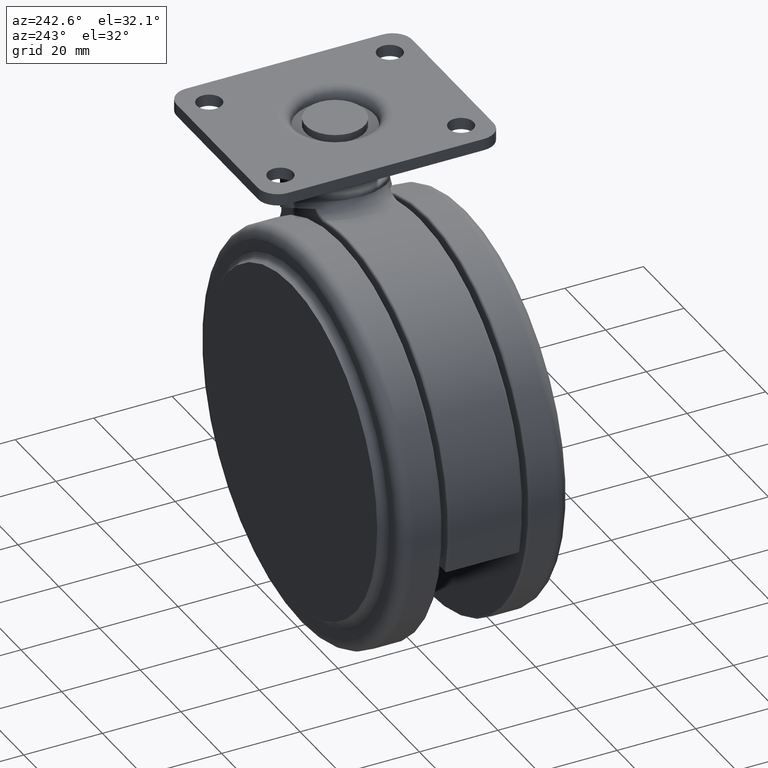
[diagram: clean part render]
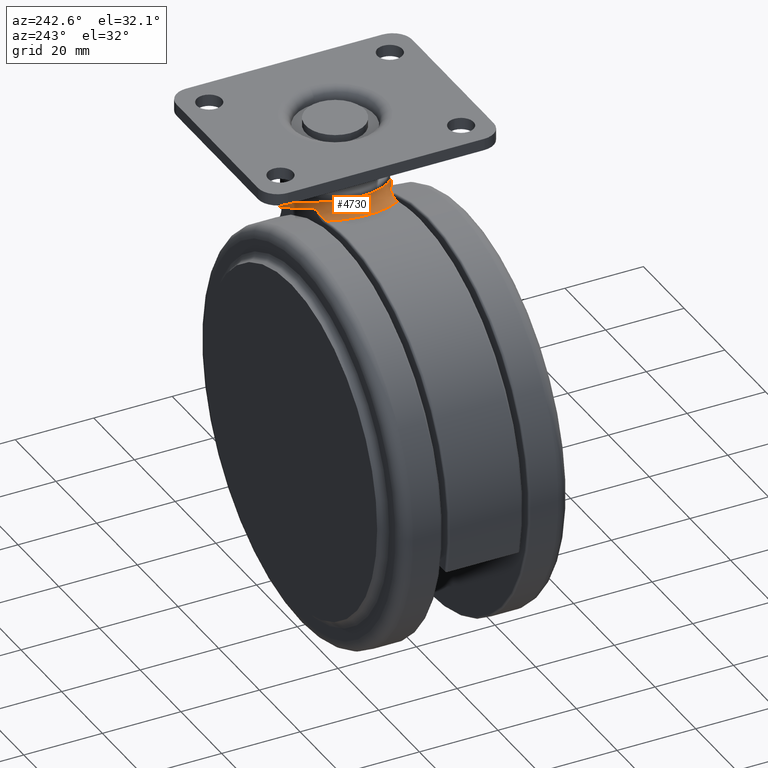
[diagram: same view with one face highlighted and labeled with its STEP entity id]
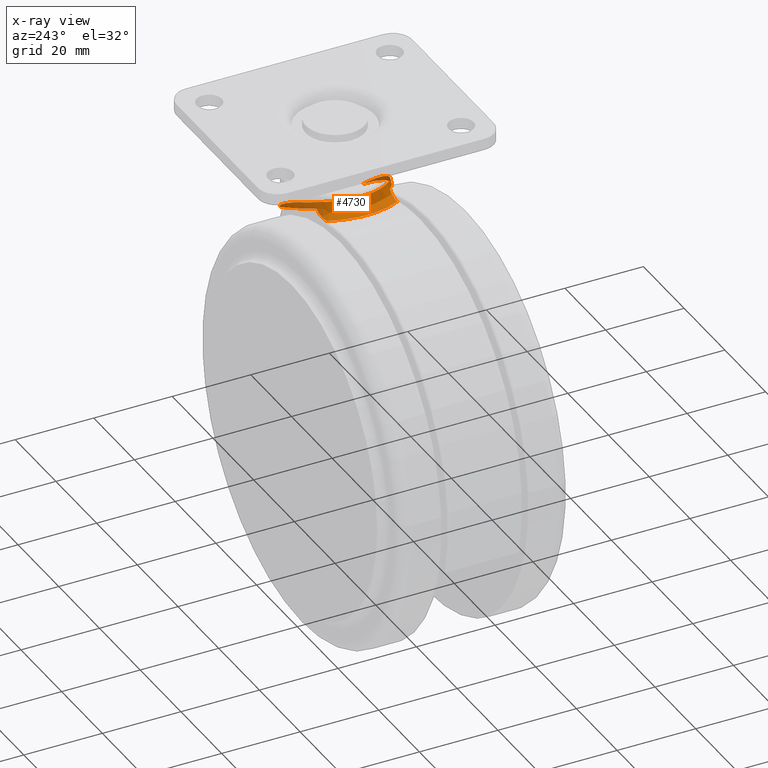
[diagram: x-ray of the same camera — body ghosted, the highlighted face saturated]
A machine part, auxiliary view. The second image highlights one B-rep face of the part: STEP entity #4730.
The next image is the same camera in x-ray: the body ghosted, the highlighted face saturated — about 3% of this face is hidden behind the body in this view.
In plain terms, the highlighted face is a freeform B-spline surface patch.
Its self-contained STEP definition (entity closure, byte-faithful):
#17 = CARTESIAN_POINT ( 'NONE',  ( -11.05255008085239700, -5.968249856000659800, -1.502056193002589100 ) ) ;
#32 = CARTESIAN_POINT ( 'NONE',  ( -1.192391523107178900, -12.45462709146477900, -5.517594693845965500 ) ) ;
#39 = CARTESIAN_POINT ( 'NONE',  ( 6.331688248807093800, -10.79892767742702200, -11.25689161246728900 ) ) ;
#63 = CARTESIAN_POINT ( 'NONE',  ( -2.625611816641463000, -12.48824673552468300, -6.094465767455385900 ) ) ;
#101 = CARTESIAN_POINT ( 'NONE',  ( -10.59497871372942200, -9.218252311348534200, -4.622310199946436900 ) ) ;
#113 = CARTESIAN_POINT ( 'NONE',  ( -2.269545502966793000, 12.54539565837250600, -6.256554943348969100 ) ) ;
#125 = CARTESIAN_POINT ( 'NONE',  ( -15.16687945985294100, 5.155127735243463700, -4.285994410603169800 ) ) ;
#139 = CARTESIAN_POINT ( 'NONE',  ( -10.96272289689342100, 6.023635832301283500, -5.132312510495443900 ) ) ;
#141 = CARTESIAN_POINT ( 'NONE',  ( -15.05754743931497500, -5.480090249505247300, -4.305619938092127600 ) ) ;
#156 = CARTESIAN_POINT ( 'NONE',  ( 6.986995497130923400, -12.72770506251308100, -14.25963672363891300 ) ) ;
#157 = B_SPLINE_CURVE_WITH_KNOTS ( 'NONE', 3,
 ( #4038, #1557, #5273, #2820, #328, #3222, #749, #3638, #1159, #4053, #1574, #4458 ),
 .UNSPECIFIED., .F., .F.,
 ( 4, 2, 2, 2, 2, 4 ),
 ( 0.0000000000000000000, 0.0005858198378553493500, 0.001171639675710698700, 0.002343279351421397000, 0.003514919027132095200, 0.004686558702842793000 ),
 .UNSPECIFIED. ) ;
#160 = CARTESIAN_POINT ( 'NONE',  ( -7.164090072918048300, 10.31335533572328200, -2.687840070387313800 ) ) ;
#163 = CARTESIAN_POINT ( 'NONE',  ( -15.50401833692048100, 3.947490771882072600, -4.227025261565246200 ) ) ;
#179 = CARTESIAN_POINT ( 'NONE',  ( 4.239989036254580200, -11.82879909374598000, -12.22885973019591600 ) ) ;
#186 = CARTESIAN_POINT ( 'NONE',  ( -5.765676329641252100, 14.78340349814436500, -6.942224279928481700 ) ) ;
#193 = CARTESIAN_POINT ( 'NONE',  ( -1.206513916182547100, 12.45338760345794100, -5.509326475754249900 ) ) ;
#198 = CARTESIAN_POINT ( 'NONE',  ( 2.472975389653902000, -12.29896663531446100, -7.907774636699534700 ) ) ;
#202 = CARTESIAN_POINT ( 'NONE',  ( -2.099491504748952900, 12.40681957646687100, -8.547373117171520800 ) ) ;
#204 = CARTESIAN_POINT ( 'NONE',  ( -9.655943257620514000, 7.960962658190189800, -1.879960548456947000 ) ) ;
#215 = CARTESIAN_POINT ( 'NONE',  ( -2.220604327319924700, -15.48760225562112100, -8.487112476514049300 ) ) ;
#219 = CARTESIAN_POINT ( 'NONE',  ( 2.439090476403593700, 12.27097144438853100, -7.901442719928805800 ) ) ;
#223 = CARTESIAN_POINT ( 'NONE',  ( -12.50000000000004300, 0.6160883289880726400, -1.186043927074281500 ) ) ;
#232 = CARTESIAN_POINT ( 'NONE',  ( -5.116444834672073200, -11.47567324354674900, -7.188933848726006400 ) ) ;
#237 = CARTESIAN_POINT ( 'NONE',  ( 6.990347924262724000, 12.72523446509052100, -14.26228427223183500 ) ) ;
#246 = VERTEX_POINT ( 'NONE', #1388 ) ;
#255 = CARTESIAN_POINT ( 'NONE',  ( -6.859283430558512000, -10.45398676545647600, -2.814450889597747800 ) ) ;
#269 = CARTESIAN_POINT ( 'NONE',  ( -11.80419177587664400, -10.87188164452613200, -5.007829787323195200 ) ) ;
#291 = CARTESIAN_POINT ( 'NONE',  ( -10.51218591138931800, -6.783616985071774700, -5.265167974116970100 ) ) ;
#308 = CARTESIAN_POINT ( 'NONE',  ( -12.13011097394903000, -3.033776999581143200, -1.262566637207804600 ) ) ;
#327 = CARTESIAN_POINT ( 'NONE',  ( -15.96745335427724300, -0.7691047710563417800, -4.149428534670275500 ) ) ;
#328 = CARTESIAN_POINT ( 'NONE',  ( -9.692197245983022600, 9.292290596952465600, -4.284054096072639000 ) ) ;
#382 = ORIENTED_EDGE ( 'NONE', *, *, #1433, .F. ) ;
#417 = CARTESIAN_POINT ( 'NONE',  ( 3.853000779401238400, 11.90137597714839900, -8.988108825932918900 ) ) ;
#455 = CARTESIAN_POINT ( 'NONE',  ( -8.851765532266705700, -8.906901156937189900, -2.111254051636242100 ) ) ;
#457 = ORIENTED_EDGE ( 'NONE', *, *, #4150, .F. ) ;
#477 = CARTESIAN_POINT ( 'NONE',  ( 0.3843239890458946500, -12.50507709659121000, -6.484820060617917800 ) ) ;
#484 = CARTESIAN_POINT ( 'NONE',  ( 4.831978964962078600, -11.55518678160977700, -10.22353763779952700 ) ) ;
#502 = CARTESIAN_POINT ( 'NONE',  ( -4.385696712989256300, -12.06226193285098000, -5.335373687435005500 ) ) ;
#528 = ORIENTED_EDGE ( 'NONE', *, *, #2452, .F. ) ;
#532 = CARTESIAN_POINT ( 'NONE',  ( -12.50000000000008500, 9.038243073550461900E-013, -1.186043927074286000 ) ) ;
#544 = CARTESIAN_POINT ( 'NONE',  ( -9.692197245982358200, -9.292290596952518900, -4.284054096072297000 ) ) ;
#562 = CARTESIAN_POINT ( 'NONE',  ( -11.80394534461613500, 4.157361076774955100, -1.333154075364797200 ) ) ;
#581 = CARTESIAN_POINT ( 'NONE',  ( -13.77915888535375200, 8.188378402521353300, -4.555400836187215100 ) ) ;
#586 = CARTESIAN_POINT ( 'NONE',  ( -15.50394217610509500, -3.947875178841895300, -4.227038109285412100 ) ) ;
#597 = CARTESIAN_POINT ( 'NONE',  ( 7.134044537869966600, -10.26427827622022600, -11.90521492705724800 ) ) ;
#599 = CARTESIAN_POINT ( 'NONE',  ( -7.012854276750481100, 10.44644054004536700, -6.435100511460187400 ) ) ;
#601 = CARTESIAN_POINT ( 'NONE',  ( -15.06078846981251300, 5.470396283528689500, -4.305037803309154800 ) ) ;
#611 = CARTESIAN_POINT ( 'NONE',  ( 4.383170244602888000, -14.25866048374770400, -12.33561514658294600 ) ) ;
#615 = CARTESIAN_POINT ( 'NONE',  ( -3.767432991484799900, 11.92209959537854000, -4.148757736686667000 ) ) ;
#616 = CARTESIAN_POINT ( 'NONE',  ( -1.197363007086488700, 12.65464507787690200, -6.764621571486676600 ) ) ;
#617 = CARTESIAN_POINT ( 'NONE',  ( -2.813531822716705700, 12.19190915977577600, -4.624626457463916700 ) ) ;
#623 = EDGE_CURVE ( 'NONE', #4242, #4655, #851, .T. ) ;
#626 = VERTEX_POINT ( 'NONE', #3543 ) ;
#629 = CARTESIAN_POINT ( 'NONE',  ( -0.2162605381131576200, -12.57620162639197400, -9.517280469023250000 ) ) ;
#634 = CARTESIAN_POINT ( 'NONE',  ( -0.9699230141563918200, 15.50918313210956100, -9.113951337574588900 ) ) ;
#639 = CARTESIAN_POINT ( 'NONE',  ( -10.54379608492189900, 6.721030820350304000, -1.637911079239329000 ) ) ;
#651 = CARTESIAN_POINT ( 'NONE',  ( -0.7369682152764166500, -12.49000181912567000, -5.786339225068708500 ) ) ;
#659 = CARTESIAN_POINT ( 'NONE',  ( 2.163007306920714500, 12.39595951423353500, -10.88253873645500400 ) ) ;
#674 = CARTESIAN_POINT ( 'NONE',  ( -6.687893065378641000, -14.45137333491635300, -6.588236822604992300 ) ) ;
#677 =( BOUNDED_SURFACE ( )  B_SPLINE_SURFACE ( 3, 2, ( 
 ( #156, #5112, #597 ),
 ( #3476, #996, #3893 ),
 ( #1404, #4284, #1833 ),
 ( #4705, #2246, #5133 ),
 ( #2669, #179, #3082 ),
 ( #611, #3497, #1015 ),
 ( #3915, #1418, #4303 ),
 ( #1852, #4722, #2267 ),
 ( #5152, #2687, #198 ),
 ( #3103, #629, #3517 ),
 ( #1040, #3930, #1439 ),
 ( #4322, #1874, #4740 ),
 ( #2280, #5173, #2708 ),
 ( #215, #3120, #651 ),
 ( #3536, #1052, #3956 ),
 ( #1458, #4337, #1890 ),
 ( #4763, #2299, #5190 ),
 ( #2732, #232, #3139 ),
 ( #674, #3554, #1071 ),
 ( #3973, #1484, #4359 ),
 ( #1904, #4786, #2320 ),
 ( #5206, #2743, #255 ),
 ( #3155, #689, #3570 ),
 ( #1090, #3991, #1501 ),
 ( #4380, #1919, #4802 ),
 ( #2336, #5221, #2760 ),
 ( #269, #3178, #702 ),
 ( #3588, #1106, #4008 ),
 ( #1520, #4394, #1942 ),
 ( #4821, #2351, #5236 ),
 ( #2780, #291, #3189 ),
 ( #722, #3603, #1124 ),
 ( #4023, #1535, #4412 ),
 ( #1957, #4845, #2365 ),
 ( #5253, #2803, #308 ),
 ( #3206, #732, #3626 ),
 ( #1140, #4037, #1556 ),
 ( #4435, #1977, #4858 ),
 ( #2389, #5271, #2819 ),
 ( #327, #3221, #748 ),
 ( #3637, #1158, #4051 ),
 ( #1573, #4457, #1994 ),
 ( #4879, #2403, #5296 ),
 ( #2835, #3981, #4747 ),
 ( #2196, #5079, #2612 ),
 ( #125, #3032, #562 ),
 ( #3443, #972, #3859 ),
 ( #1363, #4250, #1799 ),
 ( #4665, #2210, #5100 ),
 ( #2626, #139, #3049 ),
 ( #581, #3462, #983 ),
 ( #3878, #1382, #4271 ),
 ( #1818, #4684, #2232 ),
 ( #5116, #2652, #160 ),
 ( #3068, #599, #3481 ),
 ( #1001, #3896, #1410 ),
 ( #4288, #1836, #4708 ),
 ( #2252, #5137, #2671 ),
 ( #186, #3085, #615 ),
 ( #3501, #1021, #3919 ),
 ( #1421, #4308, #1857 ),
 ( #4728, #2268, #5157 ),
 ( #2694, #202, #3110 ),
 ( #634, #3522, #1042 ),
 ( #3936, #1443, #4326 ),
 ( #1881, #4744, #2286 ),
 ( #5179, #2714, #219 ),
 ( #3125, #659, #3541 ),
 ( #1057, #3958, #1464 ),
 ( #4344, #1894, #4770 ),
 ( #2305, #5194, #2735 ),
 ( #237, #3144, #678 ) ),
 .UNSPECIFIED., .F., .F., .F. ) 
 B_SPLINE_SURFACE_WITH_KNOTS ( ( 4, 2, 2, 2, 2, 2, 2, 2, 2, 2, 2, 2, 2, 2, 2, 2, 2, 2, 2, 2, 2, 2, 2, 2, 2, 2, 2, 2, 2, 2, 2, 2, 2, 2, 2, 4 ),
 ( 3, 3 ),
 ( 0.02118290022891711900, 0.02343537081073340100, 0.02456160610164154200, 0.02568784139254968300, 0.03019278255618224400, 0.03131901784709038200, 0.03244525313799852300, 0.03469772371981480500, 0.03695019430163108700, 0.03920266488344736900, 0.04145513546526365100, 0.04258137075617179200, 0.04370760604707993300, 0.04596007662889621500, 0.04708631191980434900, 0.04821254721071249100, 0.05271748837434504800, 0.05384372366525318900, 0.05496995895616133000, 0.05609619424706947100, 0.05722242953797761200, 0.05947490011979389400, 0.06172737070161016900, 0.06397984128342644500, 0.06510607657433459300, 0.06623231186524272700, 0.07073725302887529100, 0.07524219419250785500, 0.07636842948341598900, 0.07749466477432413700, 0.07974713535614041900, 0.08199960593795670200, 0.08425207651977298400, 0.08650454710158926600, 0.08875701768340554800, 0.09326195884703811200 ),
 ( 0.0000000000000000000, 1.000000000000000000 ),
 .UNSPECIFIED. ) 
 GEOMETRIC_REPRESENTATION_ITEM ( )  RATIONAL_B_SPLINE_SURFACE ( (
 ( 1.000000000000000000, 0.8227089915498969600, 1.000000000000000000),
 ( 1.000000000000000000, 0.8147637365296990200, 1.000000000000000000),
 ( 1.000000000000000000, 0.8066520694606694700, 1.000000000000000000),
 ( 1.000000000000000000, 0.7943046892283054400, 1.000000000000000000),
 ( 1.000000000000000000, 0.7901626239519721200, 1.000000000000000000),
 ( 1.000000000000000000, 0.7819297173689956400, 1.000000000000000000),
 ( 1.000000000000000000, 0.7778269362010936700, 1.000000000000000000),
 ( 1.000000000000000000, 0.7574190290766329400, 1.000000000000000000),
 ( 1.000000000000000000, 0.7414180158471392900, 1.000000000000000000),
 ( 1.000000000000000000, 0.7225446312749460600, 1.000000000000000000),
 ( 1.000000000000000000, 0.7188153169635580500, 1.000000000000000000),
 ( 1.000000000000000000, 0.7115565161781456400, 1.000000000000000000),
 ( 1.000000000000000000, 0.7080333744123737900, 1.000000000000000000),
 ( 1.000000000000000000, 0.6978047968551039900, 1.000000000000000000),
 ( 1.000000000000000000, 0.6914402966194085300, 1.000000000000000000),
 ( 1.000000000000000000, 0.6797382342843333300, 1.000000000000000000),
 ( 1.000000000000000000, 0.6743928140926818100, 1.000000000000000000),
 ( 1.000000000000000000, 0.6648745917650589200, 1.000000000000000000),
 ( 1.000000000000000000, 0.6608017037286518800, 1.000000000000000000),
 ( 1.000000000000000000, 0.6539447643729446900, 1.000000000000000000),
 ( 1.000000000000000000, 0.6511610072725512200, 1.000000000000000000),
 ( 1.000000000000000000, 0.6478667736158101300, 1.000000000000000000),
 ( 1.000000000000000000, 0.6469153301023935500, 1.000000000000000000),
 ( 1.000000000000000000, 0.6452879031821461300, 1.000000000000000000),
 ( 1.000000000000000000, 0.6446182310380465000, 1.000000000000000000),
 ( 1.000000000000000000, 0.6430035133036977600, 1.000000000000000000),
 ( 1.000000000000000000, 0.6424419053927735700, 1.000000000000000000),
 ( 1.000000000000000000, 0.6421373075614831300, 1.000000000000000000),
 ( 1.000000000000000000, 0.6421256060442932500, 1.000000000000000000),
 ( 1.000000000000000000, 0.6422446508317614100, 1.000000000000000000),
 ( 1.000000000000000000, 0.6423759656226621900, 1.000000000000000000),
 ( 1.000000000000000000, 0.6432913933885778800, 1.000000000000000000),
 ( 1.000000000000000000, 0.6447769514936504400, 1.000000000000000000),
 ( 1.000000000000000000, 0.6462391540960719100, 1.000000000000000000),
 ( 1.000000000000000000, 0.6465145816716574300, 1.000000000000000000),
 ( 1.000000000000000000, 0.6470022470134863000, 1.000000000000000000),
 ( 1.000000000000000000, 0.6472154017506114300, 1.000000000000000000),
 ( 1.000000000000000000, 0.6475642507346509600, 1.000000000000000000),
 ( 1.000000000000000000, 0.6476994906952767700, 1.000000000000000000),
 ( 1.000000000000000000, 0.6478805517903284400, 1.000000000000000000),
 ( 1.000000000000000000, 0.6479269708373955900, 1.000000000000000000),
 ( 1.000000000000000000, 0.6479314015007078300, 1.000000000000000000),
 ( 1.000000000000000000, 0.6477521976042348600, 1.000000000000000000),
 ( 1.000000000000000000, 0.6470734234408581600, 1.000000000000000000),
 ( 1.000000000000000000, 0.6465691967613914600, 1.000000000000000000),
 ( 1.000000000000000000, 0.6454143529493362500, 1.000000000000000000),
 ( 1.000000000000000000, 0.6447620833516196600, 1.000000000000000000),
 ( 1.000000000000000000, 0.6438429976322013200, 1.000000000000000000),
 ( 1.000000000000000000, 0.6435470444038351400, 1.000000000000000000),
 ( 1.000000000000000000, 0.6430120258270617400, 1.000000000000000000),
 ( 1.000000000000000000, 0.6427729565181133900, 1.000000000000000000),
 ( 1.000000000000000000, 0.6418374140495241000, 1.000000000000000000),
 ( 1.000000000000000000, 0.6418811616407871200, 1.000000000000000000),
 ( 1.000000000000000000, 0.6461325233164376700, 1.000000000000000000),
 ( 1.000000000000000000, 0.6502777486519248900, 1.000000000000000000),
 ( 1.000000000000000000, 0.6588808533034004000, 1.000000000000000000),
 ( 1.000000000000000000, 0.6607785639396707200, 1.000000000000000000),
 ( 1.000000000000000000, 0.6648699889555819100, 1.000000000000000000),
 ( 1.000000000000000000, 0.6670676225409920600, 1.000000000000000000),
 ( 1.000000000000000000, 0.6741083468455437700, 1.000000000000000000),
 ( 1.000000000000000000, 0.6793998404478960300, 1.000000000000000000),
 ( 1.000000000000000000, 0.6911181002370121500, 1.000000000000000000),
 ( 1.000000000000000000, 0.6975881874605595100, 1.000000000000000000),
 ( 1.000000000000000000, 0.7112594581920447200, 1.000000000000000000),
 ( 1.000000000000000000, 0.7184755575362591400, 1.000000000000000000),
 ( 1.000000000000000000, 0.7335101500222658300, 1.000000000000000000),
 ( 1.000000000000000000, 0.7413286917882053700, 1.000000000000000000),
 ( 1.000000000000000000, 0.7574266628163972600, 1.000000000000000000),
 ( 1.000000000000000000, 0.7655982943614969600, 1.000000000000000000),
 ( 1.000000000000000000, 0.7901569449634969800, 1.000000000000000000),
 ( 1.000000000000000000, 0.8066414763019389400, 1.000000000000000000),
 ( 1.000000000000000000, 0.8227637979366874100, 1.000000000000000000) ) ) 
 REPRESENTATION_ITEM ( '' )  SURFACE ( )  );
#678 = CARTESIAN_POINT ( 'NONE',  ( 7.136910322353601900, 10.26228585894396900, -11.90802132856574300 ) ) ;
#689 = CARTESIAN_POINT ( 'NONE',  ( -7.799788608244749200, -9.808152154449064900, -6.156540889799156700 ) ) ;
#702 = CARTESIAN_POINT ( 'NONE',  ( -8.929389743856049200, -8.767646487449800600, -2.098299574776888200 ) ) ;
#722 = CARTESIAN_POINT ( 'NONE',  ( -14.34091640346773200, -7.290147174437982400, -4.435298450740451600 ) ) ;
#732 = CARTESIAN_POINT ( 'NONE',  ( -12.28605056722778400, -2.323820236020578600, -4.768016964205011200 ) ) ;
#748 = CARTESIAN_POINT ( 'NONE',  ( -12.48830689954847100, -0.6202457831045221600, -1.188394246733961700 ) ) ;
#749 = CARTESIAN_POINT ( 'NONE',  ( -10.59497871373139700, 9.218252311348369000, -4.622310199946976900 ) ) ;
#797 = CARTESIAN_POINT ( 'NONE',  ( 3.379240254725663500, 12.04498384241507300, -8.613363138479760700 ) ) ;
#851 = B_SPLINE_CURVE_WITH_KNOTS ( 'NONE', 3,
 ( #2493, #3314, #4140, #417, #797, #1839, #4712, #2256, #5139, #2677, #193, #3088, #617, #3507, #1028, #3923, #1428, #4315, #1863, #4733, #2270, #5164, #2700, #204, #3114, #639, #3528, #1045, #3943, #1447, #4329, #1886, #4748, #2291, #5183, #2718, #223, #3131 ),
 .UNSPECIFIED., .F., .F.,
 ( 4, 2, 2, 2, 2, 2, 2, 2, 2, 2, 2, 2, 2, 2, 2, 2, 2, 2, 4 ),
 ( 0.0000000000000000000, 0.003699566191532176500, 0.005549349287298265300, 0.007399132383064352900, 0.009248915478830442200, 0.01109869857459653400, 0.01294848167036262400, 0.01387337321824566600, 0.01479826476612871300, 0.01849783095766088400, 0.01942272250554393300, 0.02034761405342697500, 0.02219739714919306100, 0.02312228869707610300, 0.02404718024495914100, 0.02589696334072522100, 0.02682185488860826300, 0.02774674643649130100, 0.02959652953225738000 ),
 .UNSPECIFIED. ) ;
#863 = CARTESIAN_POINT ( 'NONE',  ( -7.453214533264412200, -10.03934249342105100, -2.595185426169459100 ) ) ;
#882 = CARTESIAN_POINT ( 'NONE',  ( 2.429208508759708600, -12.30416234963846200, -7.877488827571846200 ) ) ;
#886 = CARTESIAN_POINT ( 'NONE',  ( 3.888799542308139000, -11.92729411638948500, -9.609719643443206400 ) ) ;
#909 = CARTESIAN_POINT ( 'NONE',  ( -5.767717014048240100, -11.48946411970166900, -4.799787834297447400 ) ) ;
#945 = CARTESIAN_POINT ( 'NONE',  ( -9.193615573592799400, -9.331126402038121300, -3.992314620148552400 ) ) ;
#950 = VERTEX_POINT ( 'NONE', #1844 ) ;
#972 = CARTESIAN_POINT ( 'NONE',  ( -11.68106719862634300, 4.492195564585460800, -4.929258628428673500 ) ) ;
#983 = CARTESIAN_POINT ( 'NONE',  ( -10.61766807948271200, 6.603530969830466700, -1.618724886261872200 ) ) ;
#986 = CARTESIAN_POINT ( 'NONE',  ( -15.75018177165870800, -2.773062423797003600, -4.185256193070487500 ) ) ;
#996 = CARTESIAN_POINT ( 'NONE',  ( 5.732430768648426600, -11.18231426256459000, -13.28476145501044800 ) ) ;
#1001 = CARTESIAN_POINT ( 'NONE',  ( -7.029212663628864100, 14.29152299824163600, -6.467030663708876600 ) ) ;
#1004 = B_SPLINE_CURVE_WITH_KNOTS ( 'NONE', 3,
 ( #2877, #4960, #4144, #1672, #4548, #2085, #4982, #2499, #17, #2930, #455, #3337, #863, #3757, #1264, #4159, #1696, #4566, #2103, #4995, #2527, #32, #2945, #477, #3360, #882, #3773, #1288, #4174, #1712 ),
 .UNSPECIFIED., .F., .F.,
 ( 4, 2, 2, 2, 2, 2, 2, 2, 2, 2, 2, 2, 2, 2, 4 ),
 ( 0.02959652953225738000, 0.03144799858960953300, 0.03237373311828560500, 0.03329946764696167800, 0.03700240576166597500, 0.04070534387637027300, 0.04163107840504635300, 0.04255681293372242500, 0.04440828199107457700, 0.04625975104842672300, 0.04811122010577887500, 0.04996268916313102700, 0.05181415822048317200, 0.05551709633518747700, 0.05922003444989177400 ),
 .UNSPECIFIED. ) ;
#1006 = CARTESIAN_POINT ( 'NONE',  ( -14.10277180261416400, 7.642021384287514400, -4.488131617924796800 ) ) ;
#1015 = CARTESIAN_POINT ( 'NONE',  ( 4.908193918752401100, -11.49891974494187400, -9.865752055402552400 ) ) ;
#1021 = CARTESIAN_POINT ( 'NONE',  ( -4.154322204859440100, 11.86522045452634400, -7.598782122718143100 ) ) ;
#1026 = CARTESIAN_POINT ( 'NONE',  ( 0.5587115577897915400, 12.64990104726364900, -7.658062444757298700 ) ) ;
#1027 = EDGE_LOOP ( 'NONE', ( #457, #4393, #1142, #528, #2125, #382, #3755 ) ) ;
#1028 = CARTESIAN_POINT ( 'NONE',  ( -3.883813732969198200, 11.88470458980191700, -4.092540533688717700 ) ) ;
#1040 = CARTESIAN_POINT ( 'NONE',  ( -0.3239719397359816500, -15.46478019756830900, -9.459418390260186300 ) ) ;
#1042 = CARTESIAN_POINT ( 'NONE',  ( 0.3321625846881204900, 12.50740575146649300, -6.450788417800586300 ) ) ;
#1045 = CARTESIAN_POINT ( 'NONE',  ( -11.01300826633425300, 5.921066127311271500, -1.518832336630952400 ) ) ;
#1052 = CARTESIAN_POINT ( 'NONE',  ( -2.600704359195949300, -12.30875246906290400, -8.306555883367048300 ) ) ;
#1057 = CARTESIAN_POINT ( 'NONE',  ( 3.268695340583624500, 14.71724849675768900, -11.58491519834254100 ) ) ;
#1071 = CARTESIAN_POINT ( 'NONE',  ( -4.555779555894788200, -11.65433333452359000, -3.773531032118867300 ) ) ;
#1090 = CARTESIAN_POINT ( 'NONE',  ( -10.23231597333697500, -12.32512016215948900, -5.431953878218316800 ) ) ;
#1106 = CARTESIAN_POINT ( 'NONE',  ( -9.875664320843466000, -7.686892282948689600, -5.460340200101161800 ) ) ;
#1124 = CARTESIAN_POINT ( 'NONE',  ( -11.09788015099351800, -5.879150946945154400, -1.491416357308041500 ) ) ;
#1132 = B_SPLINE_CURVE_WITH_KNOTS ( 'NONE', 3,
 ( #1646, #3727, #4668, #2215, #5102, #2631, #141, #3052, #586, #3465, #986, #3882, #1386, #4274, #1820, #4690, #2235, #5120, #2655, #163, #3071, #601, #3485, #1006, #3901, #1412 ),
 .UNSPECIFIED., .F., .F.,
 ( 4, 2, 2, 2, 2, 2, 2, 2, 2, 2, 2, 2, 4 ),
 ( 0.0006158291584128928600, 0.001819163664838187300, 0.003022498171263481900, 0.005429167184114069800, 0.006632501690539365100, 0.007835836196964658700, 0.009039170703389953100, 0.01024250520981524700, 0.01264917422266583600, 0.01385250872909113100, 0.01505584323551642500, 0.01746251224836701400, 0.01986918126121760300 ),
 .UNSPECIFIED. ) ;
#1140 = CARTESIAN_POINT ( 'NONE',  ( -15.77031384538839900, -2.649813585445060000, -4.181898854717464300 ) ) ;
#1142 = ORIENTED_EDGE ( 'NONE', *, *, #3328, .F. ) ;
#1158 = CARTESIAN_POINT ( 'NONE',  ( -12.49966280406834900, -0.3028323512846327100, -4.712913710731937700 ) ) ;
#1159 = CARTESIAN_POINT ( 'NONE',  ( -11.73540106051370200, 9.123234107989096800, -4.797805832185826300 ) ) ;
#1264 = CARTESIAN_POINT ( 'NONE',  ( -6.719478453586562600, -10.54437997438809700, -2.867754819707682300 ) ) ;
#1268 = CARTESIAN_POINT ( 'NONE',  ( 6.895609752960259800, -10.42595636547929900, -11.67343788938922000 ) ) ;
#1288 = CARTESIAN_POINT ( 'NONE',  ( 5.216905115178794200, -11.40092185086229800, -10.11229391744449300 ) ) ;
#1293 = CARTESIAN_POINT ( 'NONE',  ( 2.583847840336630500, -12.32655893770867400, -8.802248077057687000 ) ) ;
#1304 = CARTESIAN_POINT ( 'NONE',  ( -6.763053484470257000, -10.96008000829418600, -4.438800745028482100 ) ) ;
#1325 = CARTESIAN_POINT ( 'NONE',  ( -12.88500706529240600, -9.029730079267231700, -4.749541510034177300 ) ) ;
#1331 = CARTESIAN_POINT ( 'NONE',  ( -6.764677214792386400, 10.95910627886491900, -4.438232449108845400 ) ) ;
#1340 = CARTESIAN_POINT ( 'NONE',  ( -8.894810350512781100, -9.352573606339390700, -3.742254415495425100 ) ) ;
#1363 = CARTESIAN_POINT ( 'NONE',  ( -14.47014750314945000, 6.872094761748057200, -4.416348426644517200 ) ) ;
#1382 = CARTESIAN_POINT ( 'NONE',  ( -10.09975487896779200, 7.466349836512968400, -5.387281329922238600 ) ) ;
#1385 = B_SPLINE_CURVE_WITH_KNOTS ( 'NONE', 3,
 ( #1268, #39, #2949, #484, #3369, #886, #3777, #1293, #4179, #1716, #4587, #2129, #5015, #2544, #63, #2967, #502, #3380, #909, #3795, #1304, #4199, #1736, #4606 ),
 .UNSPECIFIED., .F., .F.,
 ( 4, 2, 2, 2, 2, 2, 2, 2, 2, 2, 2, 4 ),
 ( 2.643675322774903800E-017, 0.002366080351888560000, 0.003549120527832826300, 0.004732160703777091300, 0.007098241055665623100, 0.009464321407554153100, 0.01064736158349841900, 0.01183040175944268700, 0.01419648211133121700, 0.01537952228727548400, 0.01656256246321975400, 0.01892864281510828200 ),
 .UNSPECIFIED. ) ;
#1386 = CARTESIAN_POINT ( 'NONE',  ( -15.90968894626868700, -1.581401476146360600, -4.158863872622996300 ) ) ;
#1388 = CARTESIAN_POINT ( 'NONE',  ( -13.26361270200834000, 8.999999999993280000, -4.666302743008369400 ) ) ;
#1404 = CARTESIAN_POINT ( 'NONE',  ( 5.993890375743069000, -13.41320113999573100, -13.49004657806456800 ) ) ;
#1410 = CARTESIAN_POINT ( 'NONE',  ( -4.847552760872826400, 11.52542177277807200, -3.645052503628552400 ) ) ;
#1412 = CARTESIAN_POINT ( 'NONE',  ( -13.26361270200834000, 8.999999999993280000, -4.666302743008369400 ) ) ;
#1418 = CARTESIAN_POINT ( 'NONE',  ( 3.471090515836415600, -12.08074858720650200, -11.71459348628332200 ) ) ;
#1421 = CARTESIAN_POINT ( 'NONE',  ( -4.173536291567921300, 15.22561482852324800, -7.593505996971842400 ) ) ;
#1425 = CARTESIAN_POINT ( 'NONE',  ( 2.605975741333236100, 12.32103765253698000, -8.815482510889028200 ) ) ;
#1428 = CARTESIAN_POINT ( 'NONE',  ( -4.685971451537946900, 11.59200658856245000, -3.717802316181766400 ) ) ;
#1433 = EDGE_CURVE ( 'NONE', #950, #4242, #3332, .T. ) ;
#1439 = CARTESIAN_POINT ( 'NONE',  ( 0.8843465676366015800, -12.47159693351213100, -6.816983493694122500 ) ) ;
#1443 = CARTESIAN_POINT ( 'NONE',  ( -0.5094090867104403800, 12.57641283078576000, -9.357140402105248000 ) ) ;
#1447 = CARTESIAN_POINT ( 'NONE',  ( -11.55100765270958600, 4.816752391992921800, -1.389814384522111100 ) ) ;
#1458 = CARTESIAN_POINT ( 'NONE',  ( -4.134317863420312400, -15.23354204949401900, -7.610512011697871100 ) ) ;
#1464 = CARTESIAN_POINT ( 'NONE',  ( 3.955497629844113100, 11.86874878780360600, -9.070010110328041700 ) ) ;
#1484 = CARTESIAN_POINT ( 'NONE',  ( -6.508718683376531400, -10.73233638175443300, -6.633289844007822300 ) ) ;
#1501 = CARTESIAN_POINT ( 'NONE',  ( -7.585689461154999000, -9.939613034130136500, -2.547871110835642200 ) ) ;
#1520 = CARTESIAN_POINT ( 'NONE',  ( -12.72458681804628400, -9.758756107214450600, -4.787439139635236700 ) ) ;
#1535 = CARTESIAN_POINT ( 'NONE',  ( -11.69846579266520000, -4.558900864709591400, -4.923924499987104600 ) ) ;
#1556 = CARTESIAN_POINT ( 'NONE',  ( -12.31978441618959300, -2.136946439870107000, -1.222812786033986400 ) ) ;
#1557 = CARTESIAN_POINT ( 'NONE',  ( -9.036990113186146100, 9.342744653497964800, -3.875911058832567100 ) ) ;
#1573 = CARTESIAN_POINT ( 'NONE',  ( -15.98196914174536000, 0.7314020017976162700, -4.147075244790247700 ) ) ;
#1574 = CARTESIAN_POINT ( 'NONE',  ( -12.88500706530558500, 9.029730079266268900, -4.749541510032359200 ) ) ;
#1646 = CARTESIAN_POINT ( 'NONE',  ( -13.26361270200341900, -9.000000000000600400, -4.666302743009460100 ) ) ;
#1672 = CARTESIAN_POINT ( 'NONE',  ( -12.31530031892598500, -2.163492640213970500, -1.223739009200357500 ) ) ;
#1696 = CARTESIAN_POINT ( 'NONE',  ( -5.457344284114859600, -11.26015172515531800, -3.375141866557431300 ) ) ;
#1712 = CARTESIAN_POINT ( 'NONE',  ( 6.895609752960259800, -10.42595636547929900, -11.67343788938922000 ) ) ;
#1716 = CARTESIAN_POINT ( 'NONE',  ( 0.5559862969777265000, -12.64987819766560900, -7.656689714715829700 ) ) ;
#1736 = CARTESIAN_POINT ( 'NONE',  ( -8.326576871894152600, -9.884570441473624000, -3.914755688584065300 ) ) ;
#1769 = CARTESIAN_POINT ( 'NONE',  ( -5.770412136694290000, 11.48817309860266400, -4.798781854937347500 ) ) ;
#1799 = CARTESIAN_POINT ( 'NONE',  ( -11.20835189789360200, 5.542011904647769600, -1.471329332332981500 ) ) ;
#1818 = CARTESIAN_POINT ( 'NONE',  ( -11.88097953143417300, 10.86532295857056200, -4.978231585331275100 ) ) ;
#1820 = CARTESIAN_POINT ( 'NONE',  ( -15.98129808588531700, -0.3894342145353331700, -4.147184278489612900 ) ) ;
#1833 = CARTESIAN_POINT ( 'NONE',  ( 6.285099837340249400, -10.81709769343133900, -11.08944937262726100 ) ) ;
#1836 = CARTESIAN_POINT ( 'NONE',  ( -5.607478168587133100, 11.22937281778246700, -6.990117405046937900 ) ) ;
#1839 = CARTESIAN_POINT ( 'NONE',  ( 2.404620227857857500, 12.27675453949354700, -7.876682433026656900 ) ) ;
#1844 = CARTESIAN_POINT ( 'NONE',  ( -8.894810350512370800, 9.352573606339349900, -3.742254415494945100 ) ) ;
#1852 = CARTESIAN_POINT ( 'NONE',  ( 2.707987553515058800, -14.94253753903150200, -11.20936619890897000 ) ) ;
#1857 = CARTESIAN_POINT ( 'NONE',  ( -2.406410055680725100, 12.27872163598715400, -4.839116356715915200 ) ) ;
#1861 = CARTESIAN_POINT ( 'NONE',  ( 4.535070421474911100, 11.69440322705360900, -10.02259001144586700 ) ) ;
#1863 = CARTESIAN_POINT ( 'NONE',  ( -7.010119890825161600, 10.41910712328272500, -2.744570664123052500 ) ) ;
#1874 = CARTESIAN_POINT ( 'NONE',  ( -1.021168340357612600, -12.53571484508891800, -9.092026751795058800 ) ) ;
#1881 = CARTESIAN_POINT ( 'NONE',  ( 0.8882480970337264200, 15.33004328342644800, -10.12867493394918700 ) ) ;
#1885 = CARTESIAN_POINT ( 'NONE',  ( 6.895609752960089300, 10.42595636547940100, -11.67343788938906000 ) ) ;
#1886 = CARTESIAN_POINT ( 'NONE',  ( -12.04355229909980800, 3.361212387790433200, -1.281032190966294900 ) ) ;
#1890 = CARTESIAN_POINT ( 'NONE',  ( -2.372884625198795800, -12.28511455623804600, -4.857142732366995100 ) ) ;
#1894 = CARTESIAN_POINT ( 'NONE',  ( 4.232340294770180500, 11.87576667941403300, -12.20700801846377600 ) ) ;
#1904 = CARTESIAN_POINT ( 'NONE',  ( -8.511095172643537800, -13.53859033556249600, -5.955659712955895000 ) ) ;
#1914 = VERTEX_POINT ( 'NONE', #3426 ) ;
#1919 = CARTESIAN_POINT ( 'NONE',  ( -8.413830809525661500, -9.279373908949621000, -5.941217393566947000 ) ) ;
#1942 = CARTESIAN_POINT ( 'NONE',  ( -9.716179054078923000, -7.869964602534001800, -1.864685488114377100 ) ) ;
#1957 = CARTESIAN_POINT ( 'NONE',  ( -15.45702936862714200, -4.129904858818767900, -4.235117493476869800 ) ) ;
#1977 = CARTESIAN_POINT ( 'NONE',  ( -12.41793211652412800, -1.461016129277771200, -4.733871705451780300 ) ) ;
#1994 = CARTESIAN_POINT ( 'NONE',  ( -12.50071555660060300, 0.5898403240303989900, -1.185899759482295800 ) ) ;
#2055 = B_SPLINE_CURVE_WITH_KNOTS ( 'NONE', 3,
 ( #2993, #1325, #2167, #5060, #2591, #101, #3009, #544, #3425, #945, #3839, #1340 ),
 .UNSPECIFIED., .F., .F.,
 ( 4, 2, 2, 2, 2, 4 ),
 ( 8.716877585302701700E-018, 0.001153958533486182400, 0.002307917066972356100, 0.003461875600458529800, 0.004038854867201614000, 0.004615834133944698300 ),
 .UNSPECIFIED. ) ;
#2085 = CARTESIAN_POINT ( 'NONE',  ( -12.11931547080071400, -3.077215904207698300, -1.264859531718523600 ) ) ;
#2103 = CARTESIAN_POINT ( 'NONE',  ( -3.877777412611405100, -11.89655986070509100, -4.091417728552618100 ) ) ;
#2125 = ORIENTED_EDGE ( 'NONE', *, *, #623, .F. ) ;
#2129 = CARTESIAN_POINT ( 'NONE',  ( -1.199785083103780600, -12.65451777400320100, -6.763434771355532500 ) ) ;
#2157 = CARTESIAN_POINT ( 'NONE',  ( -8.326898877700580600, 9.884268970201647500, -3.914657935787648300 ) ) ;
#2167 = CARTESIAN_POINT ( 'NONE',  ( -12.50349067305939400, -9.060397311347356800, -4.790224965344666700 ) ) ;
#2174 = CARTESIAN_POINT ( 'NONE',  ( -4.388670356504548000, 12.06129053549675600, -5.334160502115935300 ) ) ;
#2196 = CARTESIAN_POINT ( 'NONE',  ( -15.57235421050266100, 3.715998366228443500, -4.214939879546479400 ) ) ;
#2210 = CARTESIAN_POINT ( 'NONE',  ( -11.22215153407174700, 5.522563202239082300, -5.057800279876258500 ) ) ;
#2215 = CARTESIAN_POINT ( 'NONE',  ( -14.08667595784944600, -7.640751553747281700, -4.492185714613752300 ) ) ;
#2232 = CARTESIAN_POINT ( 'NONE',  ( -8.995030890078719900, 8.762357225102432400, -2.066925480104812300 ) ) ;
#2235 = CARTESIAN_POINT ( 'NONE',  ( -15.92342614242173200, 1.590202679598598800, -4.156483141297779400 ) ) ;
#2246 = CARTESIAN_POINT ( 'NONE',  ( 4.494990865215450900, -11.73288431014540800, -12.40401635572883200 ) ) ;
#2252 = CARTESIAN_POINT ( 'NONE',  ( -6.082436925820482900, 14.67321259909087200, -6.819440065145200500 ) ) ;
#2256 = CARTESIAN_POINT ( 'NONE',  ( 0.8967323729872466200, 12.47817844010705300, -6.821259839169474800 ) ) ;
#2267 = CARTESIAN_POINT ( 'NONE',  ( 3.476182908605127700, -12.05043349925123800, -8.671928170949456700 ) ) ;
#2268 = CARTESIAN_POINT ( 'NONE',  ( -2.627526681592519800, 12.30303799001775600, -8.293797701953506500 ) ) ;
#2269 = CARTESIAN_POINT ( 'NONE',  ( 6.331741217469133400, 10.79889264455236200, -11.25693073830091400 ) ) ;
#2270 = CARTESIAN_POINT ( 'NONE',  ( -8.399532508781467400, 9.262223565030730300, -2.269759963819650400 ) ) ;
#2280 = CARTESIAN_POINT ( 'NONE',  ( -1.270467838663204200, -15.50335532749181200, -8.963566628051090400 ) ) ;
#2286 = CARTESIAN_POINT ( 'NONE',  ( 1.920599179719575800, 12.36293813168266100, -7.526395429964508400 ) ) ;
#2291 = CARTESIAN_POINT ( 'NONE',  ( -12.26042231453816500, 2.455368865351955000, -1.235108275425144300 ) ) ;
#2299 = CARTESIAN_POINT ( 'NONE',  ( -4.126360069424881000, -11.87541326921036100, -7.610950845311174700 ) ) ;
#2305 = CARTESIAN_POINT ( 'NONE',  ( 6.004206319256748100, 13.45219574418656600, -13.48341957853361400 ) ) ;
#2320 = CARTESIAN_POINT ( 'NONE',  ( -6.114323292657132900, -10.91821801234805600, -3.102999295889536900 ) ) ;
#2336 = CARTESIAN_POINT ( 'NONE',  ( -11.30556129618066300, -11.38505568390744700, -5.135182682398485600 ) ) ;
#2351 = CARTESIAN_POINT ( 'NONE',  ( -10.35877470453025100, -7.017035141705103600, -5.311388657240778200 ) ) ;
#2365 = CARTESIAN_POINT ( 'NONE',  ( -12.05197671842524400, -3.330568434559066000, -1.279224543023662000 ) ) ;
#2389 = CARTESIAN_POINT ( 'NONE',  ( -15.91487437916000800, -1.521362811027817000, -4.158015308810640000 ) ) ;
#2403 = CARTESIAN_POINT ( 'NONE',  ( -12.46154198079109300, 1.138445928310248200, -4.722608219236528600 ) ) ;
#2452 = EDGE_CURVE ( 'NONE', #4655, #2848, #1004, .T. ) ;
#2493 = CARTESIAN_POINT ( 'NONE',  ( 6.895609752960089300, 10.42595636547940100, -11.67343788938906000 ) ) ;
#2499 = CARTESIAN_POINT ( 'NONE',  ( -11.58231684234726800, -4.862102777565464600, -1.381658729521828100 ) ) ;
#2527 = CARTESIAN_POINT ( 'NONE',  ( -2.258257519223724400, -12.30608818872577400, -4.919176842231608200 ) ) ;
#2544 = CARTESIAN_POINT ( 'NONE',  ( -2.270842493974692700, -12.54517296752288800, -6.255969112164082800 ) ) ;
#2591 = CARTESIAN_POINT ( 'NONE',  ( -11.34728609571385500, -9.155543444525056500, -4.763780997491266200 ) ) ;
#2598 = CARTESIAN_POINT ( 'NONE',  ( -2.625292574872309300, 12.48832704106831700, -6.094602588218619700 ) ) ;
#2612 = CARTESIAN_POINT ( 'NONE',  ( -12.15056085746207300, 2.996772876024969900, -1.257836272193832100 ) ) ;
#2626 = CARTESIAN_POINT ( 'NONE',  ( -13.96430238601360000, 7.864117241215710800, -4.517188943151023900 ) ) ;
#2631 = CARTESIAN_POINT ( 'NONE',  ( -14.77391288980654200, -6.218465899852599700, -4.357379519360479000 ) ) ;
#2652 = CARTESIAN_POINT ( 'NONE',  ( -7.853906103652164500, 9.820282837563427200, -6.131319772368199100 ) ) ;
#2655 = CARTESIAN_POINT ( 'NONE',  ( -15.67751123548614900, 3.167633265977949800, -4.197424765451110300 ) ) ;
#2669 = CARTESIAN_POINT ( 'NONE',  ( 4.929046706958374100, -13.99754723945630800, -12.71739108246061400 ) ) ;
#2671 = CARTESIAN_POINT ( 'NONE',  ( -4.038212210744760900, 11.83323596687558200, -4.018606469092098600 ) ) ;
#2677 = CARTESIAN_POINT ( 'NONE',  ( -0.6688052862157479700, 12.49313974735329900, -5.827670896516909100 ) ) ;
#2687 = CARTESIAN_POINT ( 'NONE',  ( 1.100931184627843600, -12.57060755915546800, -10.23849424914049600 ) ) ;
#2694 = CARTESIAN_POINT ( 'NONE',  ( -2.241623816239686200, 15.48638385414869000, -8.476907839609106400 ) ) ;
#2700 = CARTESIAN_POINT ( 'NONE',  ( -9.047108259045940000, 8.630809568573235800, -2.063649592988045200 ) ) ;
#2708 = CARTESIAN_POINT ( 'NONE',  ( 0.07524523468450920700, -12.50270590922940400, -6.291380625752246700 ) ) ;
#2714 = CARTESIAN_POINT ( 'NONE',  ( 1.091990996094446300, 12.53886364512135500, -10.24500895961984900 ) ) ;
#2718 = CARTESIAN_POINT ( 'NONE',  ( -12.45470199479036900, 1.230260719990793600, -1.195075620026236500 ) ) ;
#2732 = CARTESIAN_POINT ( 'NONE',  ( -6.060174885399879600, -14.69399061796000300, -6.824089852865046000 ) ) ;
#2735 = CARTESIAN_POINT ( 'NONE',  ( 6.293848305764868200, 10.84859363591283300, -11.08235619765345200 ) ) ;
#2743 = CARTESIAN_POINT ( 'NONE',  ( -7.589912621696728800, -9.973787132887496300, -6.231921423475301800 ) ) ;
#2760 = CARTESIAN_POINT ( 'NONE',  ( -8.503141107938754200, -9.181496519241562700, -2.233293643096725400 ) ) ;
#2780 = CARTESIAN_POINT ( 'NONE',  ( -13.36080870588819600, -8.861775010638700300, -4.644623778595616600 ) ) ;
#2803 = CARTESIAN_POINT ( 'NONE',  ( -12.16541075963384300, -2.891075185894919700, -4.799616687957796800 ) ) ;
#2819 = CARTESIAN_POINT ( 'NONE',  ( -12.44336035645437000, -1.226905492769799300, -1.197496227355806700 ) ) ;
#2820 = CARTESIAN_POINT ( 'NONE',  ( -9.520669629893957300, 9.305939610191783700, -4.195978013011018200 ) ) ;
#2835 = CARTESIAN_POINT ( 'NONE',  ( -15.72777200340513200, 2.969953411469825200, -4.188937047197649500 ) ) ;
#2848 = VERTEX_POINT ( 'NONE', #5042 ) ;
#2877 = CARTESIAN_POINT ( 'NONE',  ( -12.50000000000008500, 9.038243073550461900E-013, -1.186043927074286000 ) ) ;
#2930 = CARTESIAN_POINT ( 'NONE',  ( -9.669059613427887000, -8.017989512675836000, -1.871316555836340700 ) ) ;
#2945 = CARTESIAN_POINT ( 'NONE',  ( -0.6637672360083691800, -12.49336108405773700, -5.830731083208581500 ) ) ;
#2949 = CARTESIAN_POINT ( 'NONE',  ( 5.745659792663032000, -11.12760910132446800, -10.84162982495662000 ) ) ;
#2967 = CARTESIAN_POINT ( 'NONE',  ( -3.685306595893023600, -12.27023072025322900, -5.626105065071644000 ) ) ;
#2993 = CARTESIAN_POINT ( 'NONE',  ( -13.26361270200341900, -9.000000000000600400, -4.666302743009460100 ) ) ;
#3009 = CARTESIAN_POINT ( 'NONE',  ( -10.22582912550772800, -9.249075233023450700, -4.515563265688669500 ) ) ;
#3015 = CARTESIAN_POINT ( 'NONE',  ( -1.554977920458698200, 12.62868576990952500, -6.591826540384895200 ) ) ;
#3032 = CARTESIAN_POINT ( 'NONE',  ( -11.87238324034329500, 3.958294260162920100, -4.877505630677331900 ) ) ;
#3049 = CARTESIAN_POINT ( 'NONE',  ( -10.77593591070550300, 6.342030033274125100, -1.578220279845386800 ) ) ;
#3052 = CARTESIAN_POINT ( 'NONE',  ( -15.40232899502134200, -4.336272387655518500, -4.244607653993511100 ) ) ;
#3068 = CARTESIAN_POINT ( 'NONE',  ( -8.577231266185934900, 13.55611739235511100, -5.919925987230159900 ) ) ;
#3071 = CARTESIAN_POINT ( 'NONE',  ( -15.40341674238165700, 4.332128375583170800, -4.244419520488281500 ) ) ;
#3082 = CARTESIAN_POINT ( 'NONE',  ( 5.374830249517677000, -11.28834454796458800, -10.27043454738361900 ) ) ;
#3085 = CARTESIAN_POINT ( 'NONE',  ( -4.886482976128390600, 11.56792498053237300, -7.287088943427998600 ) ) ;
#3088 = CARTESIAN_POINT ( 'NONE',  ( -2.277693641263689000, 12.30262778061862900, -4.908614831252760900 ) ) ;
#3103 = CARTESIAN_POINT ( 'NONE',  ( -0.01009643672494854200, -15.43747773717531200, -9.629628986644480200 ) ) ;
#3110 = CARTESIAN_POINT ( 'NONE',  ( -0.7549364880912531300, 12.48901923745145100, -5.775522310014130400 ) ) ;
#3114 = CARTESIAN_POINT ( 'NONE',  ( -10.03083232229496400, 7.483847112017269200, -1.774632443296180600 ) ) ;
#3120 = CARTESIAN_POINT ( 'NONE',  ( -2.082162001702119200, -12.40971665138638600, -8.555859410314580400 ) ) ;
#3125 = CARTESIAN_POINT ( 'NONE',  ( 2.689003397404567100, 14.90862768770372600, -11.21303910951154300 ) ) ;
#3131 = CARTESIAN_POINT ( 'NONE',  ( -12.50000000000008500, 9.038243073550461900E-013, -1.186043927074286000 ) ) ;
#3139 = CARTESIAN_POINT ( 'NONE',  ( -4.019181756811772000, -11.84999243380631400, -4.023535243873084300 ) ) ;
#3144 = CARTESIAN_POINT ( 'NONE',  ( 6.211220373856750000, 10.90605726031926500, -13.64692138943863000 ) ) ;
#3155 = CARTESIAN_POINT ( 'NONE',  ( -9.668837452012176900, -12.75885210117723800, -5.596931607182880500 ) ) ;
#3178 = CARTESIAN_POINT ( 'NONE',  ( -9.362933418847708500, -8.322509769319138300, -5.622983383480043800 ) ) ;
#3189 = CARTESIAN_POINT ( 'NONE',  ( -10.26004615189715500, -7.146592750560642100, -1.713301205430562100 ) ) ;
#3206 = CARTESIAN_POINT ( 'NONE',  ( -15.70490749583384700, -3.022352284046736100, -4.192822650880614800 ) ) ;
#3221 = CARTESIAN_POINT ( 'NONE',  ( -12.48937215899783800, -0.5918504913660028700, -4.715541807380168900 ) ) ;
#3222 = CARTESIAN_POINT ( 'NONE',  ( -10.22582912550927900, 9.249075233023321000, -4.515563265689243300 ) ) ;
#3314 = CARTESIAN_POINT ( 'NONE',  ( 6.087171308823029000, 10.96064841910408000, -10.89329368677279700 ) ) ;
#3328 = EDGE_CURVE ( 'NONE', #2848, #1914, #1385, .T. ) ;
#3332 = B_SPLINE_CURVE_WITH_KNOTS ( 'NONE', 3,
 ( #5050, #2157, #3833, #1331, #4223, #1769, #4638, #2174, #5067, #2598, #113, #3015, #616, #3503, #1026, #3921, #1425, #4311, #1861, #4731, #2269, #5159 ),
 .UNSPECIFIED., .F., .F.,
 ( 4, 2, 2, 2, 2, 2, 2, 2, 2, 2, 4 ),
 ( -0.0002200579582901312900, 0.002136747065674190500, 0.003315149577656349300, 0.004493552089638508000, 0.006850357113602825600, 0.008028759625584984800, 0.009207162137567143100, 0.01156396716153145600, 0.01392077218549577300, 0.01627757720946009000, 0.01863438223342440300 ),
 .UNSPECIFIED. ) ;
#3337 = CARTESIAN_POINT ( 'NONE',  ( -7.693103451209788400, -9.856771751825743200, -2.509987522459054000 ) ) ;
#3360 = CARTESIAN_POINT ( 'NONE',  ( 0.9067951444095743200, -12.47752334569637100, -6.827935674519328500 ) ) ;
#3369 = CARTESIAN_POINT ( 'NONE',  ( 4.521623718736664800, -11.68673988284086500, -10.01829315522445700 ) ) ;
#3380 = CARTESIAN_POINT ( 'NONE',  ( -5.423857386813595300, -11.64594157755425600, -4.929793536257975000 ) ) ;
#3425 = CARTESIAN_POINT ( 'NONE',  ( -9.520669629893555800, -9.305939610191815700, -4.195978013010776700 ) ) ;
#3426 = CARTESIAN_POINT ( 'NONE',  ( -8.894810350512781100, -9.352573606339390700, -3.742254415495425100 ) ) ;
#3443 = CARTESIAN_POINT ( 'NONE',  ( -14.91646081806657200, 5.854182429758996200, -4.331096438140466600 ) ) ;
#3462 = CARTESIAN_POINT ( 'NONE',  ( -10.82411844412899200, 6.270519212234479100, -5.172684324447488700 ) ) ;
#3465 = CARTESIAN_POINT ( 'NONE',  ( -15.67774890325102200, -3.166522839731176200, -4.197384362354175600 ) ) ;
#3476 = CARTESIAN_POINT ( 'NONE',  ( 6.500964039058692000, -13.08578306596982300, -13.87583154587642800 ) ) ;
#3481 = CARTESIAN_POINT ( 'NONE',  ( -6.170858985495457600, 10.93235273576001500, -3.065121546075397800 ) ) ;
#3485 = CARTESIAN_POINT ( 'NONE',  ( -14.77817236103594700, 6.208476528741792700, -4.356574566985759000 ) ) ;
#3497 = CARTESIAN_POINT ( 'NONE',  ( 3.728415252643042100, -12.00266653019859900, -11.88437836384574600 ) ) ;
#3501 = CARTESIAN_POINT ( 'NONE',  ( -4.812607183895774900, 15.07768253585415700, -7.323034792398297900 ) ) ;
#3503 = CARTESIAN_POINT ( 'NONE',  ( -0.1369346832337370000, 12.68735393536543800, -7.292018909765161500 ) ) ;
#3507 = CARTESIAN_POINT ( 'NONE',  ( -3.616362817938496600, 11.96867045826095600, -4.222569711813392200 ) ) ;
#3517 = CARTESIAN_POINT ( 'NONE',  ( 1.152659497635370300, -12.44957882042246100, -6.997406725880519900 ) ) ;
#3522 = CARTESIAN_POINT ( 'NONE',  ( -1.040599973815689000, 12.54250353357045700, -9.079266661919595200 ) ) ;
#3528 = CARTESIAN_POINT ( 'NONE',  ( -10.70717503135171000, 6.457691383639964800, -1.595737208470815700 ) ) ;
#3536 = CARTESIAN_POINT ( 'NONE',  ( -2.856887388143983600, -15.43358955401566100, -8.184889676151932700 ) ) ;
#3541 = CARTESIAN_POINT ( 'NONE',  ( 3.459954517141581300, 12.02308684491602800, -8.675821456067593500 ) ) ;
#3543 = CARTESIAN_POINT ( 'NONE',  ( -13.26361270200341900, -9.000000000000600400, -4.666302743009460100 ) ) ;
#3554 = CARTESIAN_POINT ( 'NONE',  ( -5.590923789120152400, -11.24685156834977200, -6.995174083758052500 ) ) ;
#3570 = CARTESIAN_POINT ( 'NONE',  ( -7.104006208901572500, -10.28939685565755400, -2.722747503689629100 ) ) ;
#3588 = CARTESIAN_POINT ( 'NONE',  ( -12.50091196193623600, -10.04429035690150400, -4.839666546184024500 ) ) ;
#3603 = CARTESIAN_POINT ( 'NONE',  ( -11.24222704835446200, -5.587088993745323900, -5.048554522439074400 ) ) ;
#3626 = CARTESIAN_POINT ( 'NONE',  ( -12.26387253674189100, -2.437380874228372900, -1.234392009883680900 ) ) ;
#3637 = CARTESIAN_POINT ( 'NONE',  ( -15.98069780432704900, -0.3935528613946379100, -4.147281812661985300 ) ) ;
#3638 = CARTESIAN_POINT ( 'NONE',  ( -11.34728609571681600, 9.155543444524806100, -4.763780997491648100 ) ) ;
#3727 = CARTESIAN_POINT ( 'NONE',  ( -13.48586325825186600, -8.669671585443294900, -4.617439597617713600 ) ) ;
#3755 = ORIENTED_EDGE ( 'NONE', *, *, #4022, .T. ) ;
#3757 = CARTESIAN_POINT ( 'NONE',  ( -6.966341777690525200, -10.38310583666934200, -2.774107356814825100 ) ) ;
#3773 = CARTESIAN_POINT ( 'NONE',  ( 3.389476907147160700, -12.07098025539618800, -8.606300668515706000 ) ) ;
#3777 = CARTESIAN_POINT ( 'NONE',  ( 3.565302034711985700, -12.03658181408254900, -9.405764299901175500 ) ) ;
#3781 = FACE_OUTER_BOUND ( 'NONE', #1027, .T. ) ;
#3795 = CARTESIAN_POINT ( 'NONE',  ( -6.436403030822154000, -11.14686759635894500, -4.554654262447429300 ) ) ;
#3833 = CARTESIAN_POINT ( 'NONE',  ( -7.719913558812388400, 10.35231275368200000, -4.109592708914047600 ) ) ;
#3839 = CARTESIAN_POINT ( 'NONE',  ( -9.036990113186098100, -9.342744653498638000, -3.875911058833307000 ) ) ;
#3859 = CARTESIAN_POINT ( 'NONE',  ( -11.58987779600913900, 4.721114862684391500, -1.380962224249308300 ) ) ;
#3878 = CARTESIAN_POINT ( 'NONE',  ( -12.80869833313357700, 9.756477367576675200, -4.762079923784821900 ) ) ;
#3882 = CARTESIAN_POINT ( 'NONE',  ( -15.86619444843353800, -1.980602377290267200, -4.165988762385521400 ) ) ;
#3893 = CARTESIAN_POINT ( 'NONE',  ( 6.718561868073350300, -10.55305375475622900, -11.49837735964611300 ) ) ;
#3896 = CARTESIAN_POINT ( 'NONE',  ( -5.844878291268271300, 11.10523219766771100, -6.894905925792397900 ) ) ;
#3901 = CARTESIAN_POINT ( 'NONE',  ( -13.70761073616828600, 8.340090890353801400, -4.568687057077244900 ) ) ;
#3915 = CARTESIAN_POINT ( 'NONE',  ( 4.106840986210413800, -14.38015419608101000, -12.14641631092383500 ) ) ;
#3919 = CARTESIAN_POINT ( 'NONE',  ( -2.952712592650591700, 12.15942139968073100, -4.552416880017244000 ) ) ;
#3921 = CARTESIAN_POINT ( 'NONE',  ( 1.928324770920927500, 12.46755962616614400, -8.418567826974069100 ) ) ;
#3923 = CARTESIAN_POINT ( 'NONE',  ( -4.418105375312864100, 11.69660451549467900, -3.840380184846116800 ) ) ;
#3930 = CARTESIAN_POINT ( 'NONE',  ( -0.4855150651847306400, -12.56848605757652000, -9.373029266287176100 ) ) ;
#3936 = CARTESIAN_POINT ( 'NONE',  ( -0.3441072386108639000, 15.47662170431223800, -9.444404793645020400 ) ) ;
#3943 = CARTESIAN_POINT ( 'NONE',  ( -11.15532542900723100, 5.648268311848095600, -1.484119872936373600 ) ) ;
#3956 = CARTESIAN_POINT ( 'NONE',  ( -1.280887605977167000, -12.44644318852782500, -5.465983056753795000 ) ) ;
#3958 = CARTESIAN_POINT ( 'NONE',  ( 2.691898304530847300, 12.29044691507024600, -11.21061642270295500 ) ) ;
#3973 = CARTESIAN_POINT ( 'NONE',  ( -7.913346621631361300, -13.87366290983298700, -6.154016495462046900 ) ) ;
#3981 = CARTESIAN_POINT ( 'NONE',  ( -12.30365697297698600, 2.283995645975422500, -4.763403179205107900 ) ) ;
#3991 = CARTESIAN_POINT ( 'NONE',  ( -8.212566569007057300, -9.460321814128006300, -6.010892889018719200 ) ) ;
#4008 = CARTESIAN_POINT ( 'NONE',  ( -9.524973128771218700, -8.100234158827174000, -1.920046538847915300 ) ) ;
#4022 = EDGE_CURVE ( 'NONE', #950, #246, #157, .T. ) ;
#4023 = CARTESIAN_POINT ( 'NONE',  ( -14.94062864658369900, -5.937863253029842500, -4.325781957194753800 ) ) ;
#4037 = CARTESIAN_POINT ( 'NONE',  ( -12.33662445515074400, -2.037760868964070000, -4.754890166006557500 ) ) ;
#4038 = CARTESIAN_POINT ( 'NONE',  ( -8.894810350512370800, 9.352573606339349900, -3.742254415494945100 ) ) ;
#4051 = CARTESIAN_POINT ( 'NONE',  ( -12.49962876824142600, -0.3173813398344170200, -1.186118721419387800 ) ) ;
#4053 = CARTESIAN_POINT ( 'NONE',  ( -12.50349067306401800, 9.060397311346980200, -4.790224965344343400 ) ) ;
#4140 = CARTESIAN_POINT ( 'NONE',  ( 5.227806008331831400, 11.39620572652570600, -10.12165095094970700 ) ) ;
#4144 = CARTESIAN_POINT ( 'NONE',  ( -12.45418588847299900, -1.237959310214860900, -1.195176555068777800 ) ) ;
#4150 = EDGE_CURVE ( 'NONE', #626, #246, #1132, .T. ) ;
#4159 = CARTESIAN_POINT ( 'NONE',  ( -5.969599751092879100, -10.99796516368874900, -3.161752431239341000 ) ) ;
#4174 = CARTESIAN_POINT ( 'NONE',  ( 6.087413716846954900, -10.96048809317567500, -10.89352761084690800 ) ) ;
#4179 = CARTESIAN_POINT ( 'NONE',  ( 1.916769592576200900, -12.46947965450521100, -8.412012522008517100 ) ) ;
#4199 = CARTESIAN_POINT ( 'NONE',  ( -7.719168410474739300, -10.35290115382126100, -4.109829795651430500 ) ) ;
#4223 = CARTESIAN_POINT ( 'NONE',  ( -6.438356936729307200, 11.14577609353937000, -4.553956080217893100 ) ) ;
#4242 = VERTEX_POINT ( 'NONE', #1885 ) ;
#4250 = CARTESIAN_POINT ( 'NONE',  ( -11.34332493953461300, 5.267982546521078100, -5.023550022415464300 ) ) ;
#4271 = CARTESIAN_POINT ( 'NONE',  ( -9.788080832893024700, 7.868126909115296100, -1.837804719598207900 ) ) ;
#4274 = CARTESIAN_POINT ( 'NONE',  ( -15.96714364877076900, -0.7863741049426203900, -4.149477549604488200 ) ) ;
#4284 = CARTESIAN_POINT ( 'NONE',  ( 5.244969546805283000, -11.42200205571396100, -12.92955068824473300 ) ) ;
#4288 = CARTESIAN_POINT ( 'NONE',  ( -6.713772593794606000, 14.42751809076706600, -6.581985502264420700 ) ) ;
#4303 = CARTESIAN_POINT ( 'NONE',  ( 4.671976972094285000, -11.59689854521855100, -9.665201289552777900 ) ) ;
#4308 = CARTESIAN_POINT ( 'NONE',  ( -3.654317754994940200, 12.03263303291696800, -7.819733900714331800 ) ) ;
#4311 = CARTESIAN_POINT ( 'NONE',  ( 3.907634763426298900, 11.93439124359734300, -9.616654978291860400 ) ) ;
#4315 = CARTESIAN_POINT ( 'NONE',  ( -6.008240573929811900, 11.02171349238558800, -3.130905248400747400 ) ) ;
#4322 = CARTESIAN_POINT ( 'NONE',  ( -0.9544678319302855000, -15.49769419903691800, -9.126239957323585700 ) ) ;
#4326 = CARTESIAN_POINT ( 'NONE',  ( 0.8671341347386447600, 12.48114653584853800, -6.801069081285351800 ) ) ;
#4329 = CARTESIAN_POINT ( 'NONE',  ( -11.77326311411966700, 4.244982736555614100, -1.339959962399995200 ) ) ;
#4337 = CARTESIAN_POINT ( 'NONE',  ( -3.623287886628690800, -12.04210167813777600, -7.833700241690317000 ) ) ;
#4344 = CARTESIAN_POINT ( 'NONE',  ( 4.951871666395519800, 14.04015770520035200, -12.71258227046756400 ) ) ;
#4359 = CARTESIAN_POINT ( 'NONE',  ( -5.603344692678310100, -11.18843783059684500, -3.313257485032194500 ) ) ;
#4380 = CARTESIAN_POINT ( 'NONE',  ( -10.50754912086671100, -12.09688221903286200, -5.354077521386360900 ) ) ;
#4393 = ORIENTED_EDGE ( 'NONE', *, *, #5119, .T. ) ;
#4394 = CARTESIAN_POINT ( 'NONE',  ( -10.04068959662342500, -7.468375628053838300, -5.408923361746241600 ) ) ;
#4412 = CARTESIAN_POINT ( 'NONE',  ( -11.61053739110378100, -4.788599397493507000, -1.375328874873714000 ) ) ;
#4435 = CARTESIAN_POINT ( 'NONE',  ( -15.87536544465718800, -1.899180056412418800, -4.164483907413576000 ) ) ;
#4457 = CARTESIAN_POINT ( 'NONE',  ( -12.50064994742042600, 0.5627977640678573100, -4.712661277155939700 ) ) ;
#4458 = CARTESIAN_POINT ( 'NONE',  ( -13.26361270200834000, 8.999999999993280000, -4.666302743008369400 ) ) ;
#4548 = CARTESIAN_POINT ( 'NONE',  ( -12.25756661033774700, -2.469640863573385700, -1.235703458055373200 ) ) ;
#4566 = CARTESIAN_POINT ( 'NONE',  ( -4.411996478785444400, -11.70930871486717000, -3.839698376996121700 ) ) ;
#4587 = CARTESIAN_POINT ( 'NONE',  ( -0.1377073810228423000, -12.68743487554249500, -7.291599146061193100 ) ) ;
#4606 = CARTESIAN_POINT ( 'NONE',  ( -8.894810350512781100, -9.352573606339390700, -3.742254415495425100 ) ) ;
#4638 = CARTESIAN_POINT ( 'NONE',  ( -5.427067505764780400, 11.64454297023242900, -4.928565341396149400 ) ) ;
#4655 = VERTEX_POINT ( 'NONE', #532 ) ;
#4665 = CARTESIAN_POINT ( 'NONE',  ( -14.30955091431576600, 7.206267153301707800, -4.447719704909739700 ) ) ;
#4668 = CARTESIAN_POINT ( 'NONE',  ( -13.69564899448356800, -8.330290572988825900, -4.572909294025042600 ) ) ;
#4684 = CARTESIAN_POINT ( 'NONE',  ( -9.421339484550223600, 8.309351056598380600, -5.598829204520317400 ) ) ;
#4690 = CARTESIAN_POINT ( 'NONE',  ( -15.98079565493698200, 0.7996944504169171100, -4.147265913758349900 ) ) ;
#4705 = CARTESIAN_POINT ( 'NONE',  ( 5.199356273085794700, -13.85748633185418800, -12.91053028910345000 ) ) ;
#4708 = CARTESIAN_POINT ( 'NONE',  ( -4.577902378603653200, 11.63509523462275300, -3.766904632362099400 ) ) ;
#4712 = CARTESIAN_POINT ( 'NONE',  ( 1.908275297425301000, 12.36396180522861100, -7.518101562181145800 ) ) ;
#4722 = CARTESIAN_POINT ( 'NONE',  ( 2.156714341251309000, -12.43428135759339500, -10.86453662559105400 ) ) ;
#4728 = CARTESIAN_POINT ( 'NONE',  ( -2.889905549734906200, 15.43010670310951800, -8.169449957752316700 ) ) ;
#4730 = ADVANCED_FACE ( 'NONE', ( #3781 ), #677, .F. ) ;
#4731 = CARTESIAN_POINT ( 'NONE',  ( 5.747128378745495400, 11.12664843988052300, -10.84271719284275700 ) ) ;
#4733 = CARTESIAN_POINT ( 'NONE',  ( -8.172485182456647100, 9.463143469569951400, -2.345134729569159600 ) ) ;
#4740 = CARTESIAN_POINT ( 'NONE',  ( 0.3453742727131696700, -12.49814048310499000, -6.463814354744676500 ) ) ;
#4744 = CARTESIAN_POINT ( 'NONE',  ( 0.5573739268954385200, 12.57388559943861800, -9.940528290240076000 ) ) ;
#4747 = CARTESIAN_POINT ( 'NONE',  ( -12.28341800304866300, 2.395123718945902700, -1.230273270100104900 ) ) ;
#4748 = CARTESIAN_POINT ( 'NONE',  ( -12.12309381482085900, 3.062252104712695800, -1.264055979109175900 ) ) ;
#4763 = CARTESIAN_POINT ( 'NONE',  ( -4.776573288685560700, -15.08721753323780800, -7.337918388783901200 ) ) ;
#4770 = CARTESIAN_POINT ( 'NONE',  ( 5.394341908389574900, 11.32270782658289600, -10.26533720652572300 ) ) ;
#4786 = CARTESIAN_POINT ( 'NONE',  ( -6.949922164782323700, -10.44704996395258700, -6.466170174562128300 ) ) ;
#4802 = CARTESIAN_POINT ( 'NONE',  ( -7.820969409816509500, -9.755550176658726300, -2.465322172792378200 ) ) ;
#4821 = CARTESIAN_POINT ( 'NONE',  ( -13.15425320810428600, -9.167954899527652300, -4.689977417290610800 ) ) ;
#4845 = CARTESIAN_POINT ( 'NONE',  ( -12.09506565601519800, -3.173104134717729800, -4.818164727199101300 ) ) ;
#4858 = CARTESIAN_POINT ( 'NONE',  ( -12.40958658981715400, -1.531596819692375700, -1.204352941824915900 ) ) ;
#4879 = CARTESIAN_POINT ( 'NONE',  ( -15.93173519467028900, 1.479113431689740500, -4.155154386765356200 ) ) ;
#4960 = CARTESIAN_POINT ( 'NONE',  ( -12.50000000000012600, -0.6166498549612158300, -1.186043927074263800 ) ) ;
#4982 = CARTESIAN_POINT ( 'NONE',  ( -12.03850828265117400, -3.379434125271473000, -1.282115316328605400 ) ) ;
#4995 = CARTESIAN_POINT ( 'NONE',  ( -2.795504351863483400, -12.19632934943177600, -4.633895816310449300 ) ) ;
#5015 = CARTESIAN_POINT ( 'NONE',  ( -1.558585060091498100, -12.62833634381205200, -6.590111533416520100 ) ) ;
#5042 = CARTESIAN_POINT ( 'NONE',  ( 6.895609752960259800, -10.42595636547929900, -11.67343788938922000 ) ) ;
#5050 = CARTESIAN_POINT ( 'NONE',  ( -8.894810350512370800, 9.352573606339349900, -3.742254415494945100 ) ) ;
#5060 = CARTESIAN_POINT ( 'NONE',  ( -11.73540106051019900, -9.123234107989386400, -4.797805832185600700 ) ) ;
#5067 = CARTESIAN_POINT ( 'NONE',  ( -3.687388042206185100, 12.26977321178674400, -5.625193675931687800 ) ) ;
#5079 = CARTESIAN_POINT ( 'NONE',  ( -12.18346075750607400, 2.856579563954159400, -4.794636966601623300 ) ) ;
#5100 = CARTESIAN_POINT ( 'NONE',  ( -11.07106771699543800, 5.811505768756052100, -1.504582887099021000 ) ) ;
#5102 = CARTESIAN_POINT ( 'NONE',  ( -14.26852028499708600, -7.289736765086877800, -4.455859062230997500 ) ) ;
#5112 = CARTESIAN_POINT ( 'NONE',  ( 6.207971914857347800, -10.90793223415900200, -13.64446402337464200 ) ) ;
#5116 = CARTESIAN_POINT ( 'NONE',  ( -9.739124236599746400, 12.78856061685332400, -5.564000066076391500 ) ) ;
#5119 = EDGE_CURVE ( 'NONE', #626, #1914, #2055, .T. ) ;
#5120 = CARTESIAN_POINT ( 'NONE',  ( -15.75022019021855800, 2.772529738737577800, -4.185250092841294600 ) ) ;
#5133 = CARTESIAN_POINT ( 'NONE',  ( 5.605901330212729400, -11.17539220316501800, -10.47516210651024900 ) ) ;
#5137 = CARTESIAN_POINT ( 'NONE',  ( -5.128467512882813200, 11.46051736130599800, -7.186154480507154200 ) ) ;
#5139 = CARTESIAN_POINT ( 'NONE',  ( 0.3815372038197373800, 12.50520973913953600, -6.482997575381630500 ) ) ;
#5152 = CARTESIAN_POINT ( 'NONE',  ( 1.534424040713357400, -15.25071862838409600, -10.48846663853680500 ) ) ;
#5157 = CARTESIAN_POINT ( 'NONE',  ( -1.309112808658820800, 12.44363443791023500, -5.449616955291692700 ) ) ;
#5159 = CARTESIAN_POINT ( 'NONE',  ( 6.895609752960089300, 10.42595636547940100, -11.67343788938906000 ) ) ;
#5164 = CARTESIAN_POINT ( 'NONE',  ( -8.836383962955540700, 8.846425842898913300, -2.129176768982220700 ) ) ;
#5173 = CARTESIAN_POINT ( 'NONE',  ( -1.286903917179857100, -12.51059444286039300, -8.955657813631752600 ) ) ;
#5179 = CARTESIAN_POINT ( 'NONE',  ( 1.494785085610582700, 15.21600459103392700, -10.48249313199449300 ) ) ;
#5183 = CARTESIAN_POINT ( 'NONE',  ( -12.31784536522838100, 2.148597533943982000, -1.223213085606126300 ) ) ;
#5190 = CARTESIAN_POINT ( 'NONE',  ( -2.921909424261299700, -12.16711091393385400, -4.568193492274799500 ) ) ;
#5194 = CARTESIAN_POINT ( 'NONE',  ( 5.236462156829551500, 11.46887135164454300, -12.90948188391949000 ) ) ;
#5206 = CARTESIAN_POINT ( 'NONE',  ( -9.382557975319690200, -12.96294358904057600, -5.683444235543295700 ) ) ;
#5221 = CARTESIAN_POINT ( 'NONE',  ( -8.998294493931707500, -8.719262413900132500, -5.742336444514917200 ) ) ;
#5236 = CARTESIAN_POINT ( 'NONE',  ( -10.08347451666272400, -7.393512015806405400, -1.761376062227020900 ) ) ;
#5253 = CARTESIAN_POINT ( 'NONE',  ( -15.54843170535171900, -3.761883479477063900, -4.219402487884938300 ) ) ;
#5271 = CARTESIAN_POINT ( 'NONE',  ( -12.44857982101796300, -1.170477515272572400, -4.726002005105891100 ) ) ;
#5273 = CARTESIAN_POINT ( 'NONE',  ( -9.193615573592712300, 9.331126402038123000, -3.992314620148515100 ) ) ;
#5296 = CARTESIAN_POINT ( 'NONE',  ( -12.45777363401584200, 1.192833412634392200, -1.194463649900681100 ) ) ;